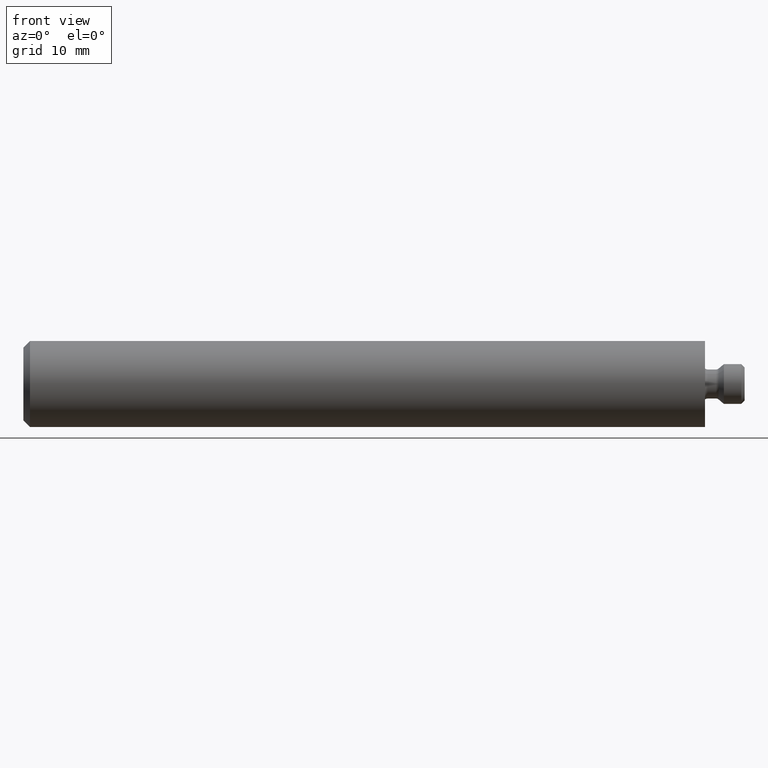
[diagram: clean part render]
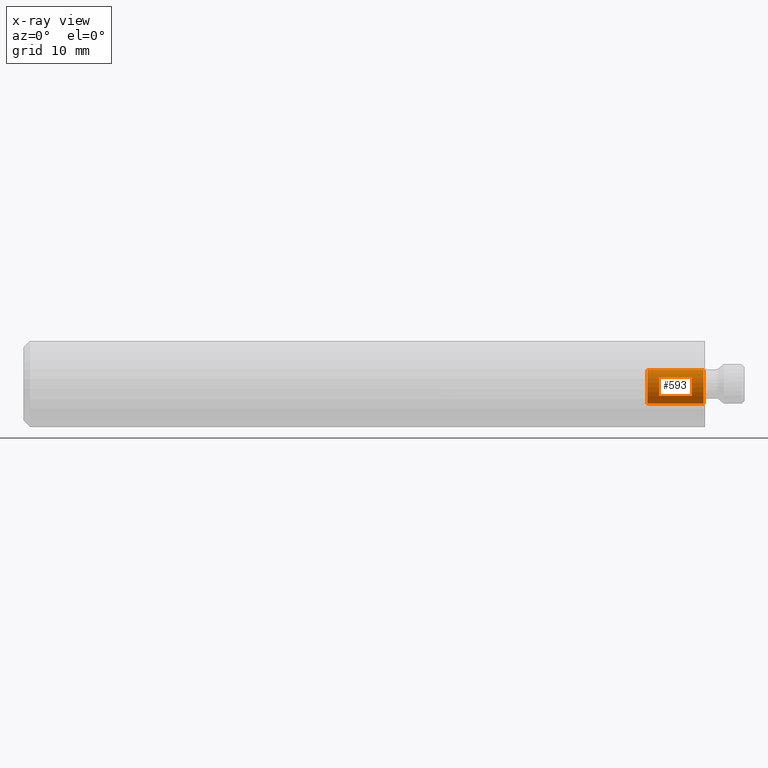
[diagram: x-ray — body ghosted, one internal face saturated and labeled with its STEP entity id]
A machine part, front view, then the same camera in x-ray: the body is ghosted and one INTERNAL B-rep face — a face not visible from any outside direction — is saturated and labeled: STEP entity #593.
In plain terms, the highlighted cylindrical surface (edge-blend (fillet) strip) has radius 3 mm, axis along (-1, 0, 0).
Its self-contained STEP definition (entity closure, byte-faithful):
#39 = DIRECTION ( 'NONE',  ( -1.000000000000000000, 0.0000000000000000000, -0.0000000000000000000 ) ) ;
#47 = CARTESIAN_POINT ( 'NONE',  ( -6.375198412698429400, 0.0000000000000000000, 2.999999999999999100 ) ) ;
#65 = DIRECTION ( 'NONE',  ( -1.000000000000000000, 0.0000000000000000000, -0.0000000000000000000 ) ) ;
#123 = DIRECTION ( 'NONE',  ( -1.000000000000000000, 0.0000000000000000000, -0.0000000000000000000 ) ) ;
#132 = VERTEX_POINT ( 'NONE', #643 ) ;
#154 = CIRCLE ( 'NONE', #248, 2.999999999999999100 ) ;
#187 = VECTOR ( 'NONE', #123, 1000.000000000000000 ) ;
#210 = VECTOR ( 'NONE', #65, 1000.000000000000000 ) ;
#241 = LINE ( 'NONE', #562, #210 ) ;
#248 = AXIS2_PLACEMENT_3D ( 'NONE', #910, #405, #990 ) ;
#280 = CARTESIAN_POINT ( 'NONE',  ( -6.375198412698429400, 0.0000000000000000000, 0.0000000000000000000 ) ) ;
#319 = CARTESIAN_POINT ( 'NONE',  ( 9.000000000000000000, 0.0000000000000000000, 0.0000000000000000000 ) ) ;
#339 = VERTEX_POINT ( 'NONE', #653 ) ;
#346 = AXIS2_PLACEMENT_3D ( 'NONE', #280, #39, #556 ) ;
#347 = EDGE_CURVE ( 'NONE', #339, #1032, #429, .T. ) ;
#351 = EDGE_CURVE ( 'NONE', #505, #132, #241, .T. ) ;
#405 = DIRECTION ( 'NONE',  ( -1.000000000000000000, 0.0000000000000000000, -0.0000000000000000000 ) ) ;
#417 = DIRECTION ( 'NONE',  ( 0.0000000000000000000, 0.0000000000000000000, 1.000000000000000000 ) ) ;
#429 = LINE ( 'NONE', #47, #187 ) ;
#430 = CYLINDRICAL_SURFACE ( 'NONE', #346, 2.999999999999999100 ) ;
#489 = ORIENTED_EDGE ( 'NONE', *, *, #347, .T. ) ;
#505 = VERTEX_POINT ( 'NONE', #676 ) ;
#556 = DIRECTION ( 'NONE',  ( 0.0000000000000000000, 0.0000000000000000000, 1.000000000000000000 ) ) ;
#562 = CARTESIAN_POINT ( 'NONE',  ( -6.375198412698429400, 3.673940397442059400E-016, -2.999999999999999100 ) ) ;
#593 = ADVANCED_FACE ( 'NONE', ( #904 ), #430, .T. ) ;
#611 = AXIS2_PLACEMENT_3D ( 'NONE', #319, #922, #417 ) ;
#631 = EDGE_LOOP ( 'NONE', ( #996, #760, #489, #674 ) ) ;
#643 = CARTESIAN_POINT ( 'NONE',  ( 0.5000000000000022200, 3.673940397442060400E-016, -3.000000000000000000 ) ) ;
#653 = CARTESIAN_POINT ( 'NONE',  ( 9.000000000000000000, 0.0000000000000000000, 2.999999999999999100 ) ) ;
#674 = ORIENTED_EDGE ( 'NONE', *, *, #888, .F. ) ;
#676 = CARTESIAN_POINT ( 'NONE',  ( 9.000000000000000000, 3.673940397442060400E-016, -3.000000000000000000 ) ) ;
#715 = CARTESIAN_POINT ( 'NONE',  ( 0.5000000000000022200, 0.0000000000000000000, 2.999999999999999100 ) ) ;
#760 = ORIENTED_EDGE ( 'NONE', *, *, #965, .T. ) ;
#888 = EDGE_CURVE ( 'NONE', #132, #1032, #154, .T. ) ;
#904 = FACE_OUTER_BOUND ( 'NONE', #631, .T. ) ;
#910 = CARTESIAN_POINT ( 'NONE',  ( 0.5000000000000022200, 0.0000000000000000000, 0.0000000000000000000 ) ) ;
#922 = DIRECTION ( 'NONE',  ( -1.000000000000000000, 0.0000000000000000000, -0.0000000000000000000 ) ) ;
#965 = EDGE_CURVE ( 'NONE', #505, #339, #973, .T. ) ;
#973 = CIRCLE ( 'NONE', #611, 2.999999999999999100 ) ;
#990 = DIRECTION ( 'NONE',  ( 0.0000000000000000000, 0.0000000000000000000, 1.000000000000000000 ) ) ;
#996 = ORIENTED_EDGE ( 'NONE', *, *, #351, .F. ) ;
#1032 = VERTEX_POINT ( 'NONE', #715 ) ;